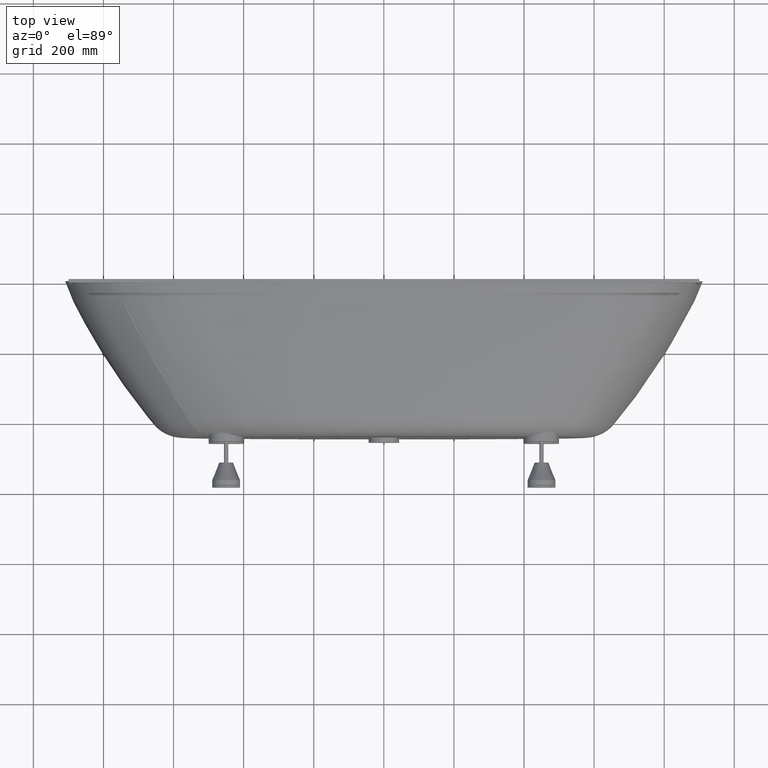
[diagram: clean part render]
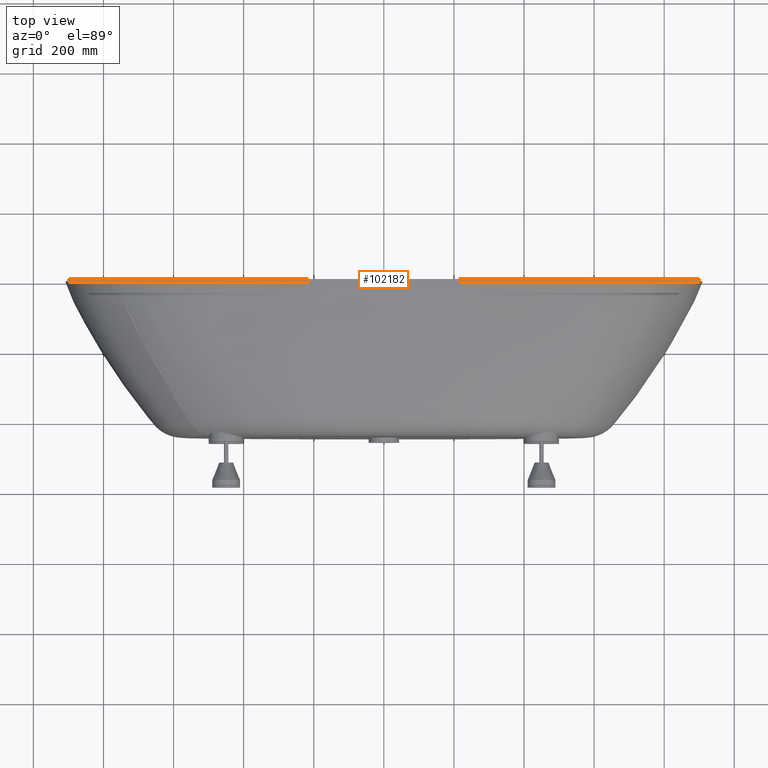
[diagram: same view with one face highlighted and labeled with its STEP entity id]
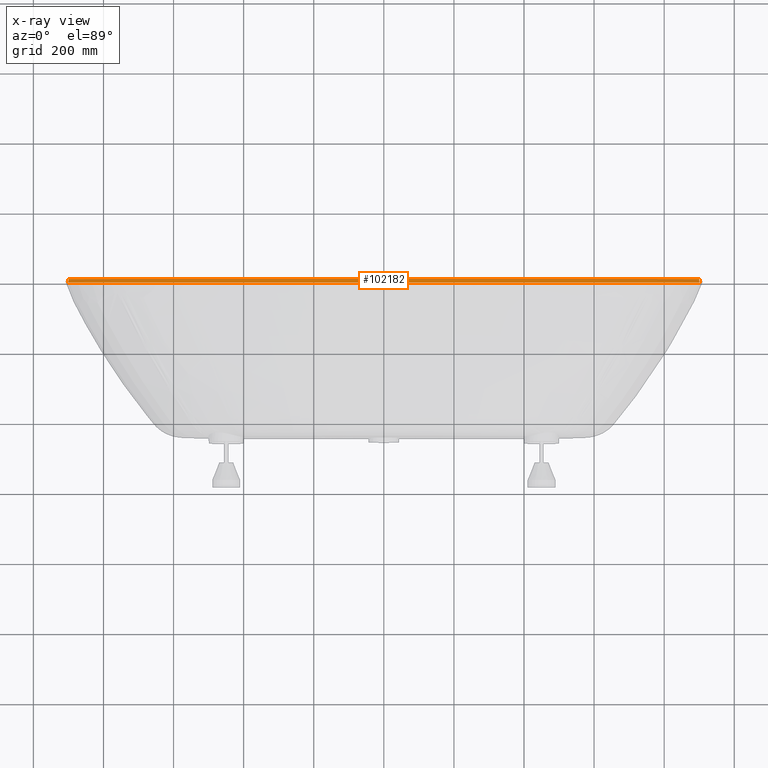
[diagram: x-ray of the same camera — body ghosted, the highlighted face saturated]
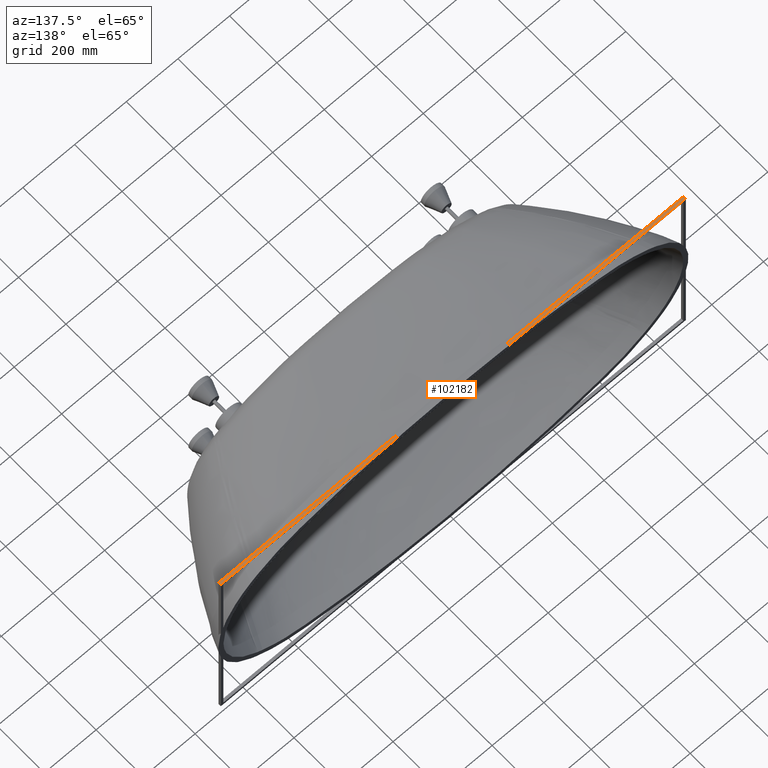
[diagram: same view with one face highlighted and labeled with its STEP entity id]
A machine part, top view. The second image highlights one B-rep face of the part: STEP entity #102182.
The next image is the same camera in x-ray: the body ghosted, the highlighted face saturated — about 0% of this face is hidden behind the body in this view.
A second angle (auxiliary view) of the same face is appended — the face is thin or edge-on in the first view.
In plain terms, the highlighted planar face has unit normal (0, 0, 1).
Its self-contained STEP definition (entity closure, byte-faithful):
#15599 = DIRECTION ( 'NONE',  ( 0.0000000000000000000, 1.000000000000000000, 0.0000000000000000000 ) ) ;
#20334 = VECTOR ( 'NONE', #102694, 1000.000000000000000 ) ;
#32596 = ORIENTED_EDGE ( 'NONE', *, *, #171546, .T. ) ;
#35219 = CARTESIAN_POINT ( 'NONE',  ( -899.9999999999998863, -10.00000000000000000, 409.9989298930360064 ) ) ;
#38756 = CARTESIAN_POINT ( 'NONE',  ( -899.9999999999998863, -10.00000000000000000, 409.9989298930360064 ) ) ;
#42553 = CARTESIAN_POINT ( 'NONE',  ( -899.9999999999998863, -10.00000000000000000, 409.9989298930360064 ) ) ;
#48559 = CARTESIAN_POINT ( 'NONE',  ( -899.9999999999998863, 0.0000000000000000000, 409.9989298930360064 ) ) ;
#54535 = VERTEX_POINT ( 'NONE', #87809 ) ;
#54751 = VERTEX_POINT ( 'NONE', #128656 ) ;
#69167 = FACE_OUTER_BOUND ( 'NONE', #174360, .T. ) ;
#76486 = CARTESIAN_POINT ( 'NONE',  ( -899.9999999999998863, 0.0000000000000000000, 409.9989298930360064 ) ) ;
#80821 = VERTEX_POINT ( 'NONE', #76486 ) ;
#83034 = LINE ( 'NONE', #137211, #174892 ) ;
#83487 = ORIENTED_EDGE ( 'NONE', *, *, #169420, .T. ) ;
#84207 = VECTOR ( 'NONE', #89357, 1000.000000000000000 ) ;
#87809 = CARTESIAN_POINT ( 'NONE',  ( 899.9999999999998863, -10.00000000000000000, 409.9989298930360064 ) ) ;
#89357 = DIRECTION ( 'NONE',  ( 0.0000000000000000000, 1.000000000000000000, 0.0000000000000000000 ) ) ;
#92884 = DIRECTION ( 'NONE',  ( 1.000000000000000000, 0.0000000000000000000, 0.0000000000000000000 ) ) ;
#93560 = CARTESIAN_POINT ( 'NONE',  ( -899.9999999999998863, -10.00000000000000000, 409.9989298930360064 ) ) ;
#96676 = DIRECTION ( 'NONE',  ( 0.0000000000000000000, 0.0000000000000000000, 1.000000000000000000 ) ) ;
#102182 = ADVANCED_FACE ( 'NONE', ( #69167 ), #164179, .T. ) ;
#102352 = ORIENTED_EDGE ( 'NONE', *, *, #108681, .F. ) ;
#102694 = DIRECTION ( 'NONE',  ( 1.000000000000000000, 0.0000000000000000000, 0.0000000000000000000 ) ) ;
#108610 = EDGE_CURVE ( 'NONE', #80821, #54751, #170199, .T. ) ;
#108681 = EDGE_CURVE ( 'NONE', #146364, #80821, #156860, .T. ) ;
#128656 = CARTESIAN_POINT ( 'NONE',  ( 899.9999999999998863, 0.0000000000000000000, 409.9989298930360064 ) ) ;
#137211 = CARTESIAN_POINT ( 'NONE',  ( 899.9999999999998863, -10.00000000000000000, 409.9989298930360064 ) ) ;
#137705 = AXIS2_PLACEMENT_3D ( 'NONE', #42553, #96676, #150852 ) ;
#146364 = VERTEX_POINT ( 'NONE', #93560 ) ;
#148338 = ORIENTED_EDGE ( 'NONE', *, *, #108610, .F. ) ;
#149271 = VECTOR ( 'NONE', #92884, 1000.000000000000000 ) ;
#150852 = DIRECTION ( 'NONE',  ( 1.000000000000000000, 0.0000000000000000000, -0.0000000000000000000 ) ) ;
#156860 = LINE ( 'NONE', #35219, #84207 ) ;
#160387 = LINE ( 'NONE', #38756, #149271 ) ;
#164179 = PLANE ( 'NONE',  #137705 ) ;
#169420 = EDGE_CURVE ( 'NONE', #146364, #54535, #160387, .T. ) ;
#170199 = LINE ( 'NONE', #48559, #20334 ) ;
#171546 = EDGE_CURVE ( 'NONE', #54535, #54751, #83034, .T. ) ;
#174360 = EDGE_LOOP ( 'NONE', ( #148338, #102352, #83487, #32596 ) ) ;
#174892 = VECTOR ( 'NONE', #15599, 1000.000000000000000 ) ;